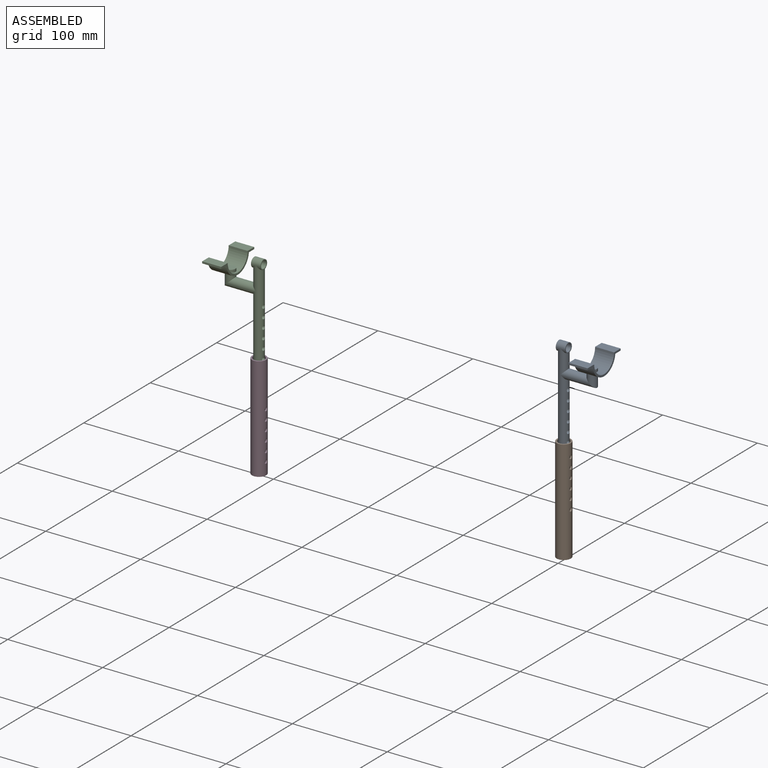
[diagram: assembled view]
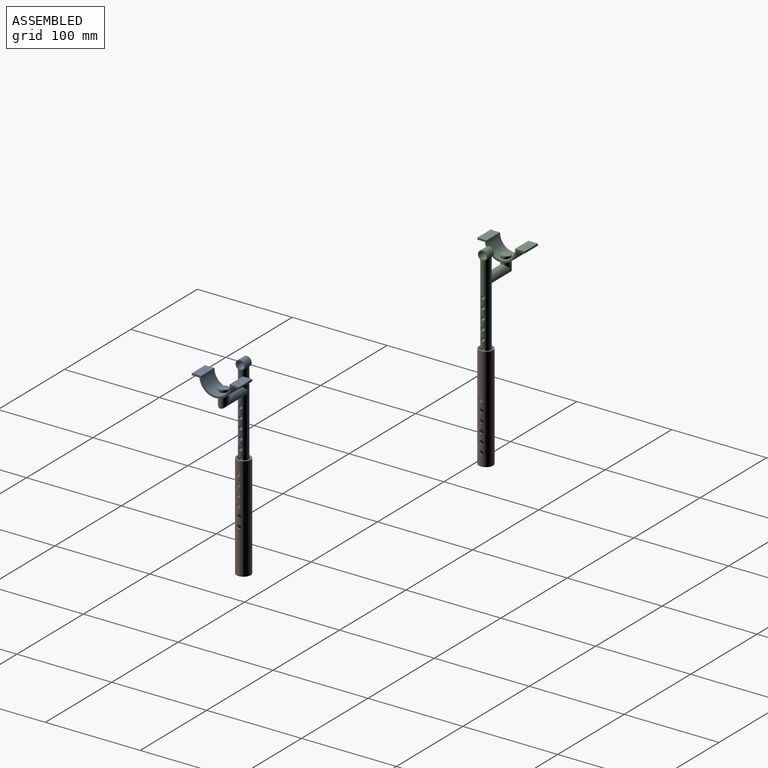
[diagram: assembled view, second angle]
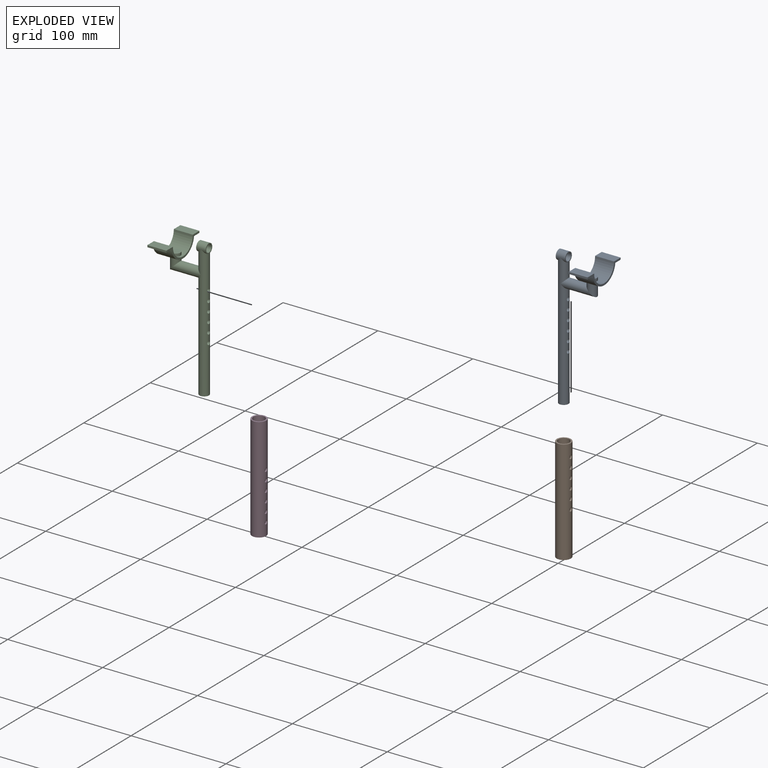
[diagram: exploded view]
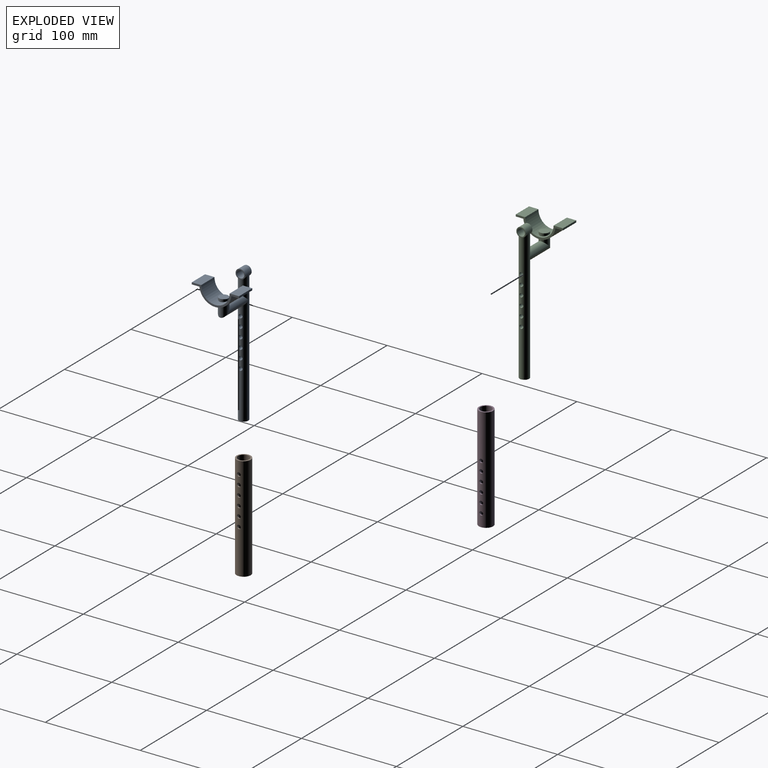
[diagram: exploded view, second angle]
ASSEMBLY  parts=4 mates=2
PART A: 26 faces, bbox 47.5x49.8x145 mm
  f0: cylinder r=5mm len=13.75mm, axis (0,0,1), area 263.1mm2, adj f13,f18
  f1: cylinder r=4mm len=10mm, axis (1,0,0), area 251.3mm2, adj f3,f4
  f2: cylinder r=5mm len=10mm, axis (1,0,0), area 214.2mm2, adj f3,f4,f6
  f3: plane 10x10mm, normal (-1,0,0), area 28.3mm2, adj f1,f2
  f4: plane 10x10mm, normal (1,0,0), area 28.3mm2, adj f1,f2
  f5: plane 10x10mm, normal (0,0,-1), area 78.5mm2, adj f6
  f6: cylinder r=5mm len=140mm, axis (0,0,-1), area 4044.2mm2, adj f2,f5,f7,f8,f9,f10,f11,f12
  f7: cylinder r=2mm len=10mm, axis (1,0,0), area 120.5mm2, adj f6
  f8: cylinder r=2mm len=10mm, axis (1,0,0), area 120.5mm2, adj f6
  f9: cylinder r=2mm len=10mm, axis (1,0,0), area 120.5mm2, adj f6
  f10: cylinder r=2mm len=10mm, axis (1,0,0), area 120.5mm2, adj f6
  f11: cylinder r=2mm len=10mm, axis (1,0,0), area 120.5mm2, adj f6
  f12: cylinder r=2mm len=10mm, axis (1,0,0), area 120.5mm2, adj f6
  f13: cylinder r=5mm len=35mm, axis (1,0,0), area 842.5mm2, adj f0,f6
  f14: cylinder r=15mm len=30mm, axis (-1,0,0), area 862.8mm2, adj f15,f21,f22,f23,f25
  f15: plane 20x9.88mm, normal (0,0,1), area 197.6mm2, adj f14,f16,f22,f23
  f16: plane 20x2mm, normal (0,-1,0), area 40mm2, adj f15,f17,f22,f23
  f17: plane 20x8mm, normal (0,0,-1), area 160mm2, adj f16,f18,f22,f23
  f18: cylinder r=17mm len=33.76mm, axis (-1,0,0), area 908.6mm2, adj f0,f17,f19,f22,f23
  f19: plane 20x8mm, normal (0,0,-1), area 160mm2, adj f18,f20,f22,f23
  f20: plane 20x2mm, normal (0,1,0), area 40mm2, adj f19,f21,f22,f23
  f21: plane 20x9.88mm, normal (0,0,1), area 197.6mm2, adj f14,f20,f22,f23
  f22: plane 49.76x17mm, normal (1,0,0), area 132.2mm2, adj f14,f15,f16,f17,f18,f19,f20,f21
  f23: plane 49.76x17mm, normal (-1,0,0), area 132.2mm2, adj f14,f15,f16,f17,f18,f19,f20,f21
  f24: plane 10x10mm, normal (0,0,1), area 78.5mm2, adj f25
  f25: cylinder r=5mm len=10mm, axis (0,0,1), area 80.9mm2, adj f14,f24
PART B: 16 faces, bbox 15x15x110 mm
  f0: cylinder r=6mm len=110mm, axis (0,0,-1), area 3993.9mm2, adj f2,f3,f4,f5,f6,f7,f8,f9
  f1: cylinder r=7.5mm len=110mm, axis (0,0,-1), area 5031.4mm2, adj f2,f3,f4,f5,f6,f7,f8,f9
  f2: plane 15x15mm, normal (0,0,1), area 63.6mm2, adj f0,f1
  f3: plane 15x15mm, normal (0,0,-1), area 63.6mm2, adj f0,f1
  f4: cylinder r=2mm len=4mm, axis (1,0,0), area 19.3mm2, adj f0,f1
  f5: cylinder r=2mm len=4mm, axis (1,0,0), area 19.3mm2, adj f0,f1
  f6: cylinder r=2mm len=4mm, axis (1,0,0), area 19.3mm2, adj f0,f1
  f7: cylinder r=2mm len=4mm, axis (1,0,0), area 19.3mm2, adj f0,f1
  f8: cylinder r=2mm len=4mm, axis (1,0,0), area 19.3mm2, adj f0,f1
  f9: cylinder r=2mm len=4mm, axis (1,0,0), area 19.3mm2, adj f0,f1
  f10: cylinder r=2mm len=4mm, axis (1,0,0), area 19.3mm2, adj f0,f1
  f11: cylinder r=2mm len=4mm, axis (1,0,0), area 19.3mm2, adj f0,f1
  f12: cylinder r=2mm len=4mm, axis (1,0,0), area 19.3mm2, adj f0,f1
  f13: cylinder r=2mm len=4mm, axis (1,0,0), area 19.3mm2, adj f0,f1
  f14: cylinder r=2mm len=4mm, axis (1,0,0), area 19.3mm2, adj f0,f1
  f15: cylinder r=2mm len=4mm, axis (1,0,0), area 19.3mm2, adj f0,f1
PART C: same geometry as A
PART D: same geometry as B
PLACE A rot(axis=(0,-0.37,0.93),0deg) t=(98.5,-132.07,-104.96)mm
PLACE B rot(axis=(1,0,0),180deg) t=(98.5,-132.07,-54.96)mm
PLACE C rot(axis=(0,0,-1),180deg) t=(-237.06,-111.58,-123.28)mm
PLACE D rot(axis=(0.18,-0.15,0.97),0deg) t=(-237.06,-111.58,-183.28)mm
MATE slider D.f0 <-> C.f6  axis (0,0,1) through (-237.06,-111.58,-73.28)mm
MATE slider B.f0 <-> A.f6  axis (0,0,1) through (98.5,-132.07,-54.96)mm
